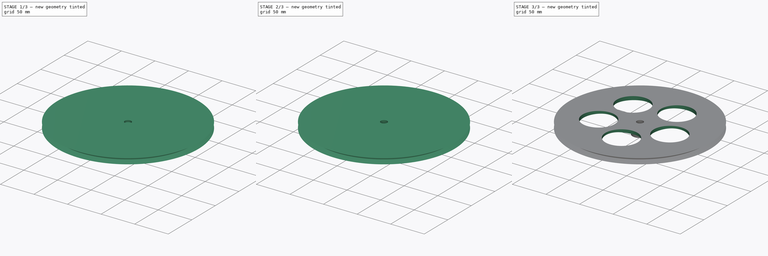
[diagram: build sequence overview — one tinted view per stage of 3, left to right]
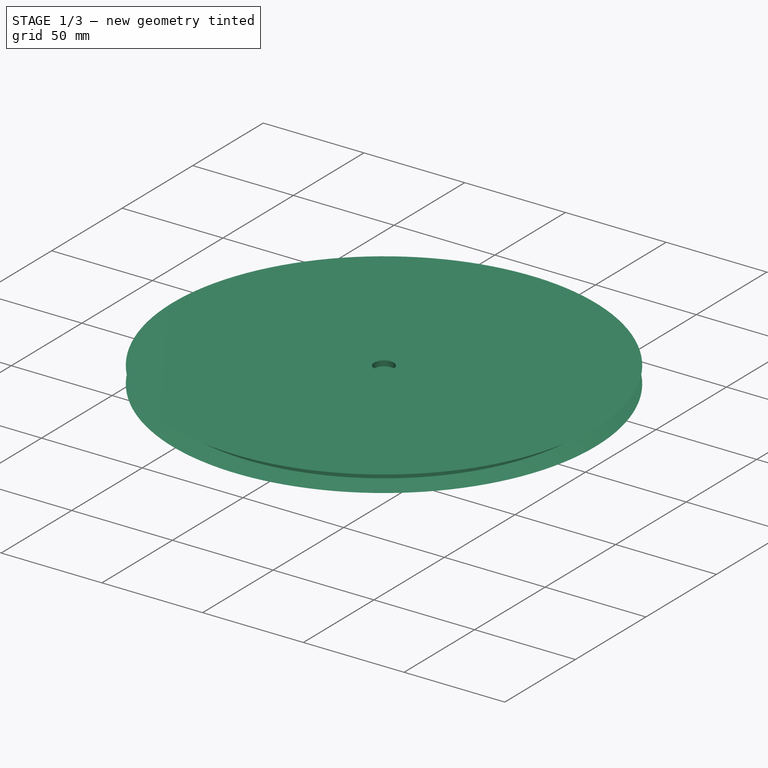
[diagram: stage 1 of 3 — iso view after this stage's code; geometry added in this stage tinted green]
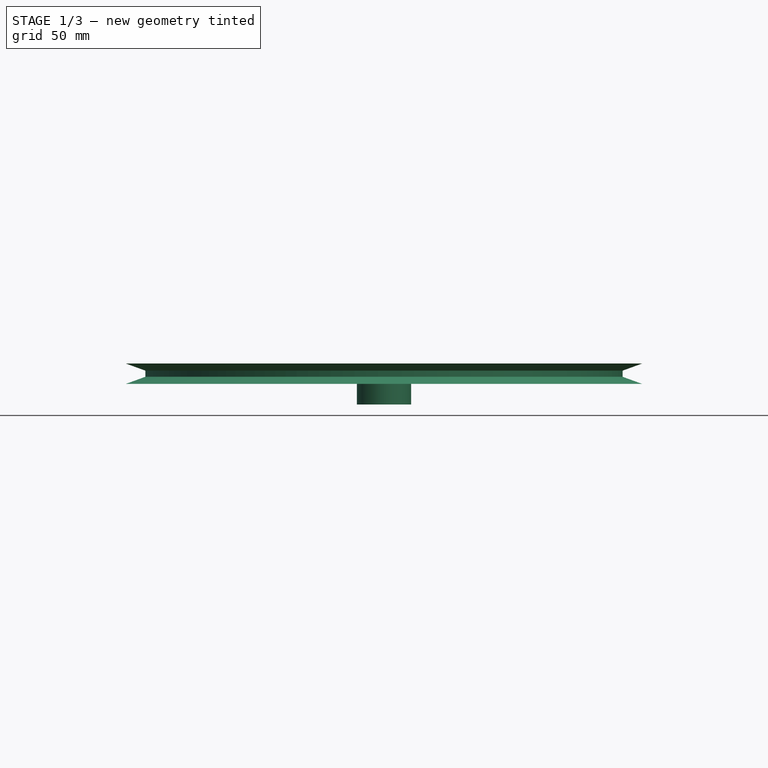
[diagram: stage 1 of 3 — front view after this stage's code; geometry added in this stage tinted green]
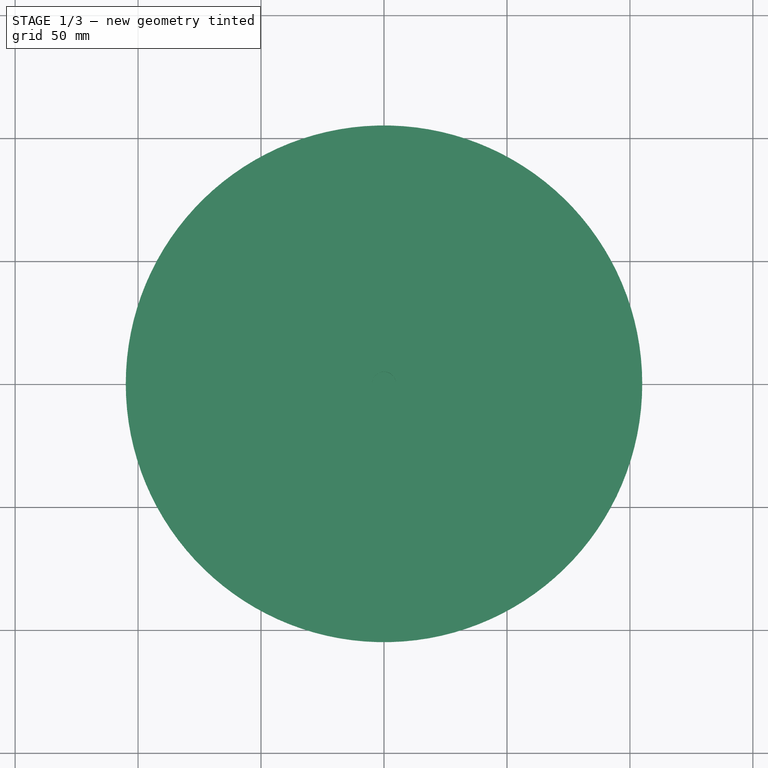
[diagram: stage 1 of 3 — top view after this stage's code; geometry added in this stage tinted green]
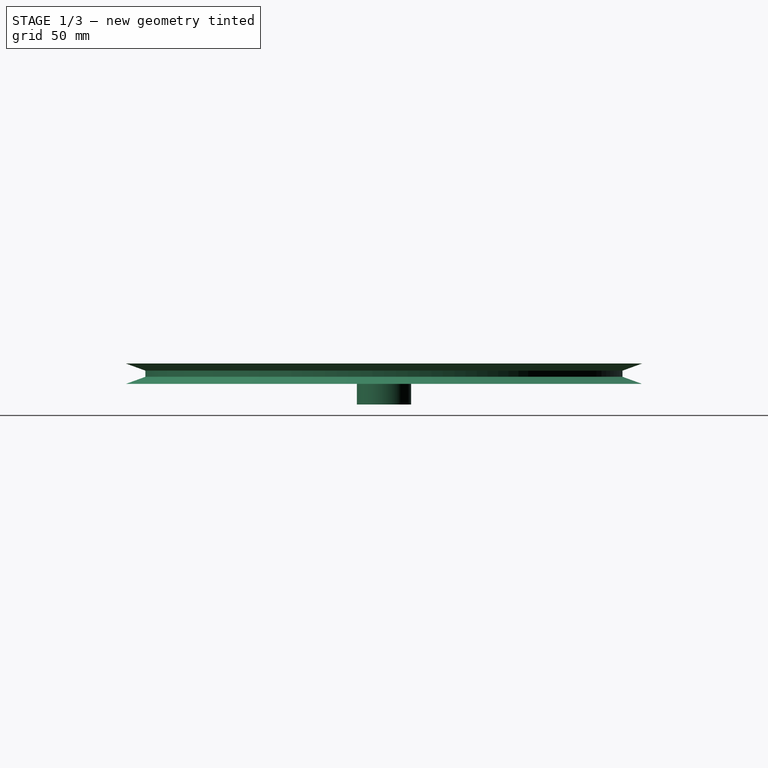
[diagram: stage 1 of 3 — right view after this stage's code; geometry added in this stage tinted green]
FCSTD DOCUMENT  (FreeCAD 0.18R16110 (Git))
Label: pulley210m
License: All rights reserved
LicenseURL: http://en.wikipedia.org/wiki/All_rights_reserved
objects: Sketcher::SketchObject×2, Part::Revolution×1, Part::Box×1, Part::Cut×1, PartDesign::FeatureBase×1, PartDesign::Pocket×1, PartDesign::PolarPattern×1, PartDesign::Body×1
note: 10 computed .brp shape members not serialized (recipe doc carries the construction recipe); baked Part::Feature solids carry a one-line shape summary decoded from their .brp

FEATURE [Sketcher::SketchObject] Sketch
  Placement = pos=(0,0,0) rot=(1,0,0;1.5708rad)
  sketch-geometry (16):
    g0: LineSegment StartX=4.86 StartY=10.0107 StartZ=0 EndX=11.05 EndY=10.0107 EndZ=0
    g1: LineSegment StartX=11.05 StartY=10.0107 StartZ=0 EndX=11.05 EndY=18.37 EndZ=0
    g2: LineSegment StartX=91.0813 StartY=18.37 StartZ=0 EndX=105 EndY=18.37 EndZ=0
    g3: LineSegment StartX=105 StartY=18.37 StartZ=0 EndX=97.0323 EndY=21.27 EndZ=0
    g4: LineSegment StartX=97.0323 StartY=21.27 StartZ=0 EndX=97.0323 EndY=23.77 EndZ=0
    g5: LineSegment StartX=97.0323 StartY=23.77 StartZ=0 EndX=105 EndY=26.67 EndZ=0
    g6: LineSegment StartX=105 StartY=26.67 StartZ=0 EndX=4.86 EndY=26.67 EndZ=0
    g7: LineSegment StartX=4.86 StartY=26.67 StartZ=0 EndX=4.86 EndY=10.0107 EndZ=0
    g8: LineSegment [constr] StartX=27.6429 StartY=26.67 StartZ=0 EndX=27.6429 EndY=18.37 EndZ=0
    g9-g12: Circle [constr] x4 (B-spline internal-alignment scaffolding for g13; pole/knot coordinates omitted)
    g13: BSplineCurve PolesCount=4 KnotsCount=2 Degree=3 IsPeriodic=0
    g14: GeomPoint [constr] X=91.0813 Y=18.37 Z=0
    g15: GeomPoint [constr] X=11.05 Y=18.37 Z=0
  constraints (35):
    c: Horizontal(g0)
    c: Vertical(g1)
    c: Horizontal(g2)
    c: Coincident(g2,g3)
    c: Coincident(g3,g4)
    c: Vertical(g4)
    c: Coincident(g4,g5)
    c: Equal(g5,g3)
    c: Angle(g3,g5) = 0.698132
    c: Coincident(g5,g6)
    c: Horizontal(g6)
    c: Coincident(g6,g7)
    c: DistanceX(g6) = 4.86
    c: DistanceX(g0) = 4.86
    c: Coincident(g7,g0)
    c: DistanceX(g0) = 11.05
    c: PointOnObject(g8,g6)
    c: PointOnObject(g8,g2)
    c: Vertical(g8)
    c: Distance(g8) = 8.3
    c: Angle(g3,g2) = 0.349066
    c: Coincident(g1,g0)
    c: DistanceY(g4,g4) = 2.5
    c: Coincident(g13,g2)
    c: Radius(g9) = 8
    c: Equal(g9,g10)
    c: Equal(g9,g11)
    c: Equal(g9,g12)
    c: Coincident(g13,g1)
    c: InternalAlignment(g9-g12 -> g13) x4
    c: InternalAlignment(g14,g13)
    c: InternalAlignment(g15,g13)
    c: DistanceY(g2) = 18.37
    c: DistanceY(g1) = 18.37
    c: DistanceX(g5) = 105
FEATURE [Part::Revolution] Revolve
  Angle = 360
  Axis = (0,0,1)
  Base = (0,0,0)
  FaceMakerClass = Part::FaceMakerBullseye
  Solid = true
  Source = -> Sketch
  Symmetric = false
FEATURE [Part::Box] Box  label="Cube"
  AttacherType = Attacher::AttachEngine3D
  Height = 14
  Length = 13.4
  Placement = pos=(-6.7,-6.7,10) rot=(0,0,1;0rad)
  Width = 13.4
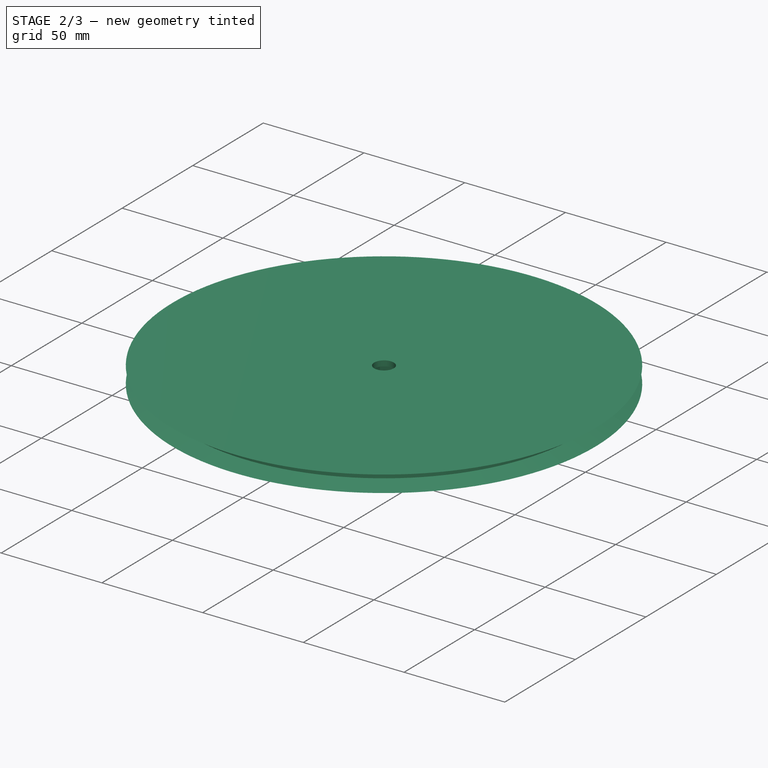
[diagram: stage 2 of 3 — iso view after this stage's code; geometry added in this stage tinted green]
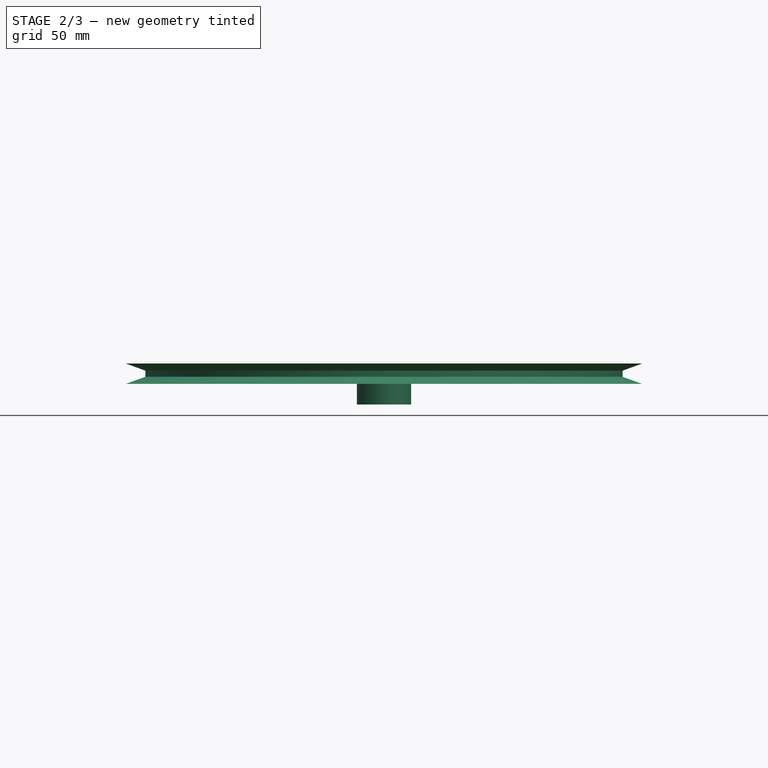
[diagram: stage 2 of 3 — front view after this stage's code; geometry added in this stage tinted green]
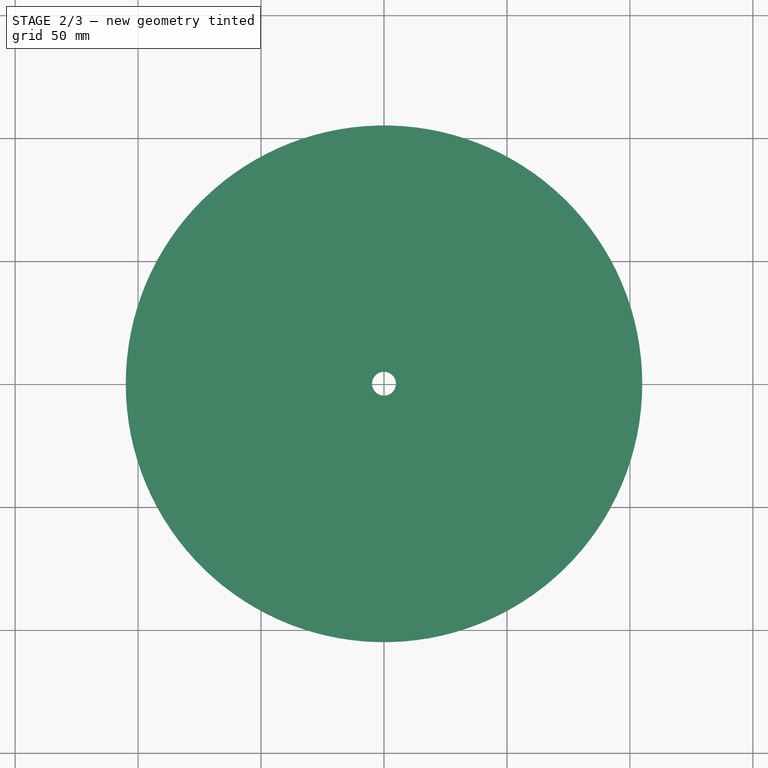
[diagram: stage 2 of 3 — top view after this stage's code; geometry added in this stage tinted green]
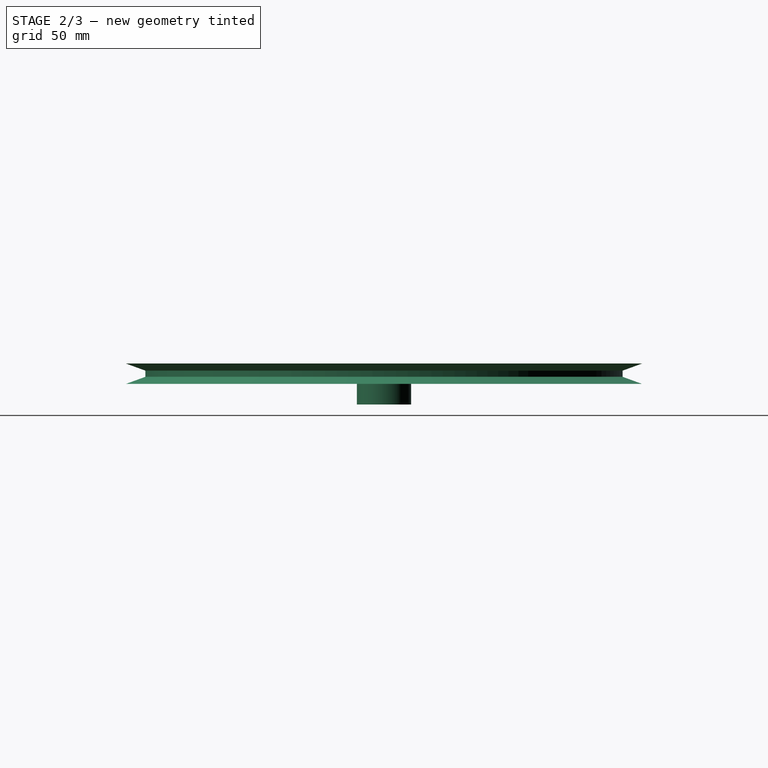
[diagram: stage 2 of 3 — right view after this stage's code; geometry added in this stage tinted green]
FEATURE [Part::Cut] Cut
  Base = -> Revolve
  Tool = -> Box
FEATURE [PartDesign::FeatureBase] BaseFeature
  BaseFeature = -> Cut
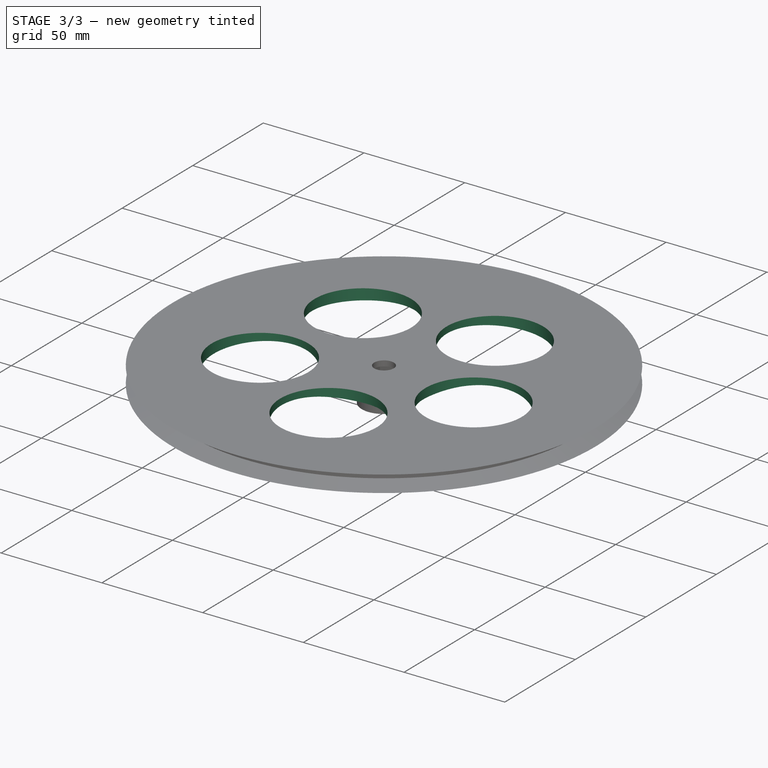
[diagram: stage 3 of 3 — iso view after this stage's code; geometry added in this stage tinted green]
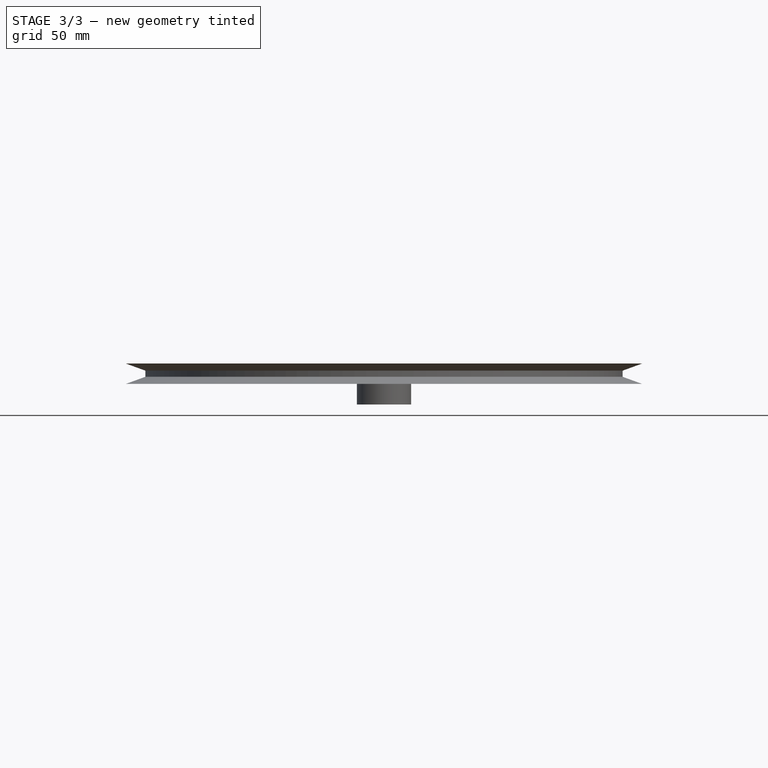
[diagram: stage 3 of 3 — front view after this stage's code; geometry added in this stage tinted green]
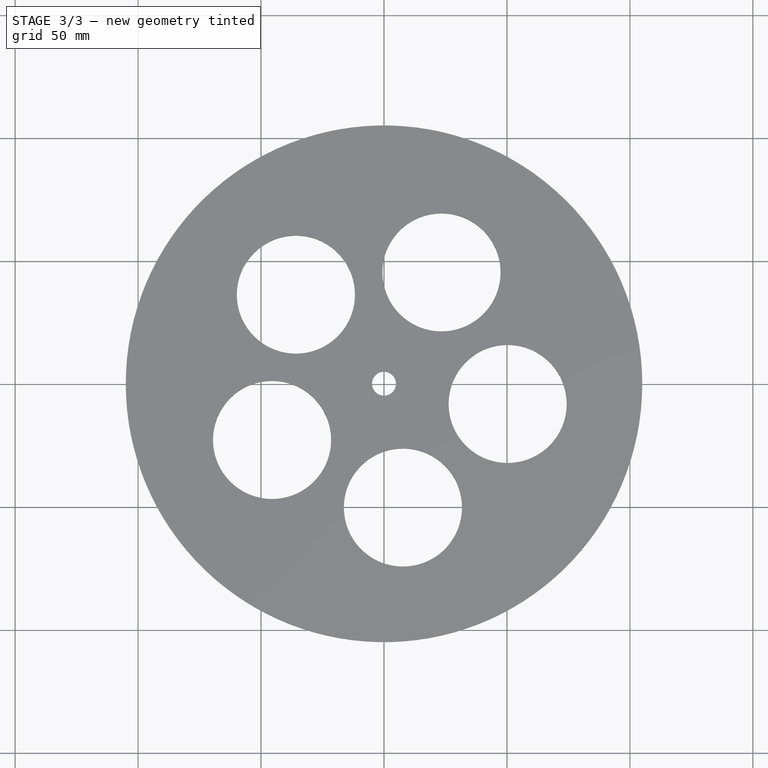
[diagram: stage 3 of 3 — top view after this stage's code; geometry added in this stage tinted green]
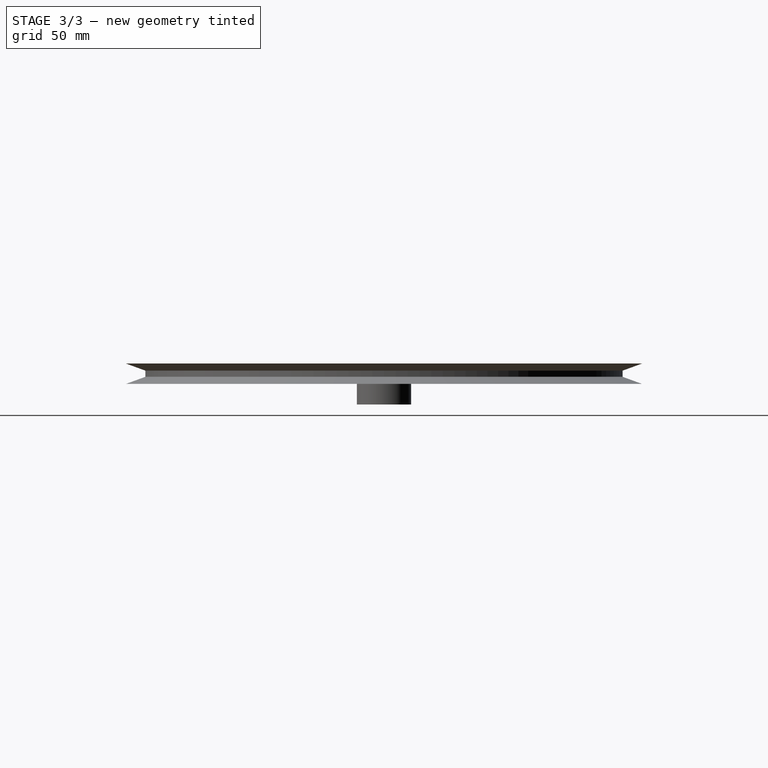
[diagram: stage 3 of 3 — right view after this stage's code; geometry added in this stage tinted green]
FEATURE [Sketcher::SketchObject] Sketch001
  MapMode = 5
  Placement = pos=(0,0,26.67) rot=(0,0,1;0rad)
  Support = -> [BaseFeature]
  sketch-geometry (1):
    g0: Circle CenterX=-35.8311 CenterY=36.2192 CenterZ=0 NormalX=0 NormalY=0 NormalZ=1 AngleXU=0 Radius=24
  constraints (1):
    c: Radius(g0) = 24
FEATURE [PartDesign::Pocket] Pocket
  BaseFeature = -> BaseFeature
  Length = 6
  Length2 = 100
  Profile = -> Sketch001
  Type = 0
FEATURE [PartDesign::PolarPattern] PolarPattern
  Angle = 360
  Axis = -> Sketch001 [N_Axis]
  BaseFeature = -> Pocket
  Occurrences = 5
  Originals = -> [Pocket]
FEATURE [PartDesign::Body] Body
  BaseFeature = -> Cut
  Group = -> [BaseFeature,Sketch001,Pocket,PolarPattern]
  Origin = -> Origin
  Tip = -> PolarPattern
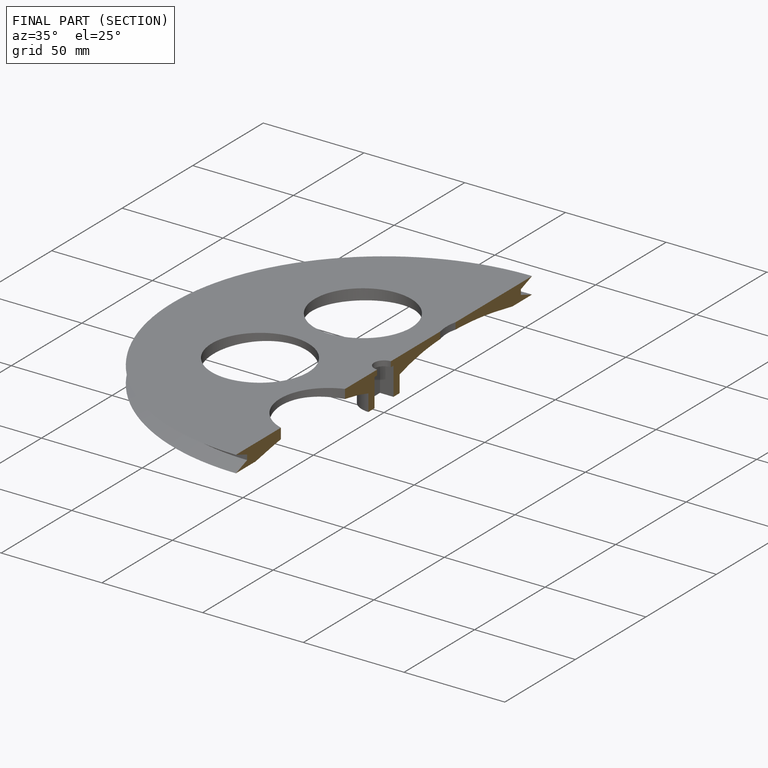
[diagram: finished part — half-section view (interior)]
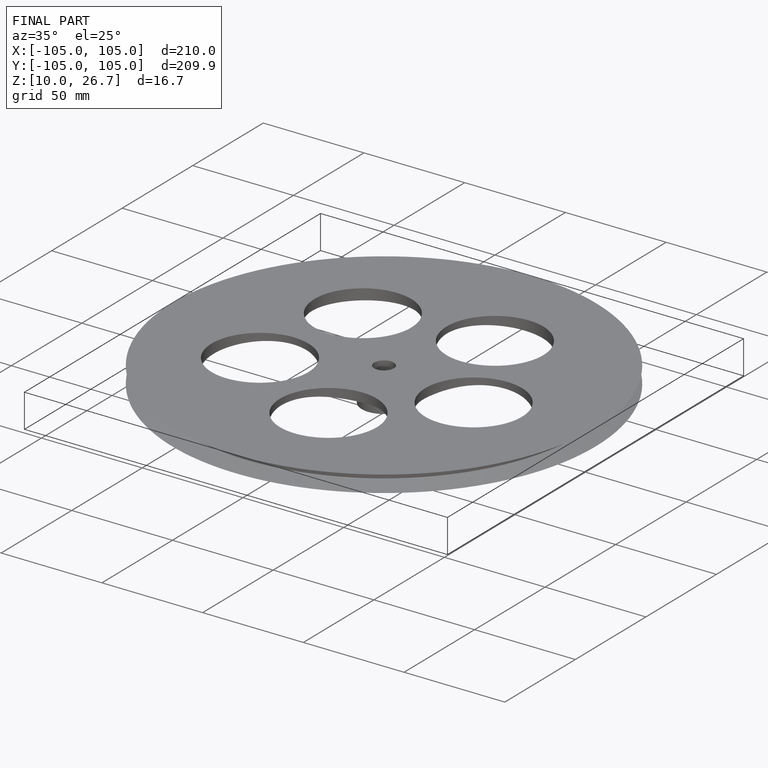
[diagram: finished part — iso view with bounding-box wireframe]
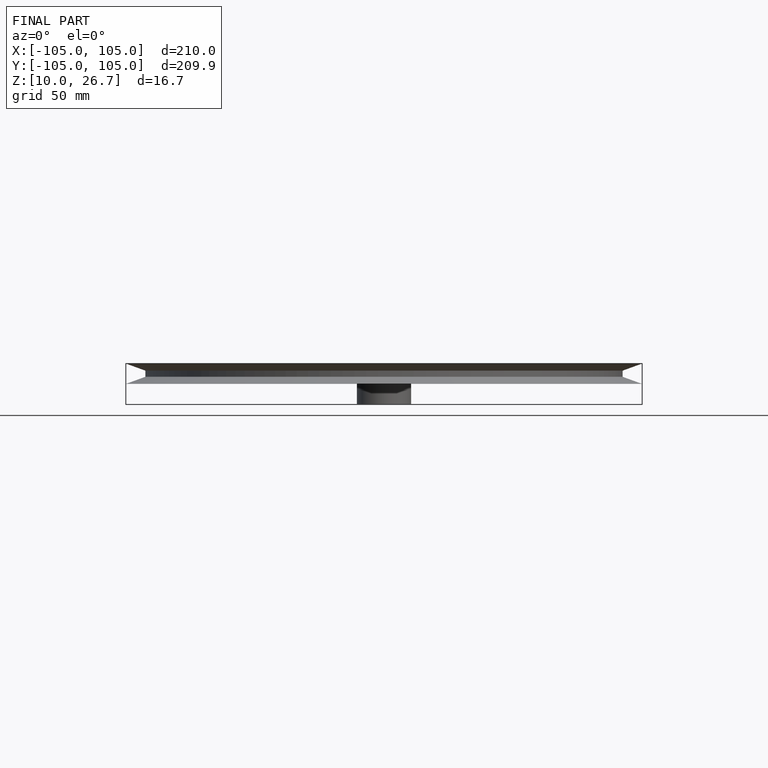
[diagram: finished part — front view with bounding-box wireframe]
